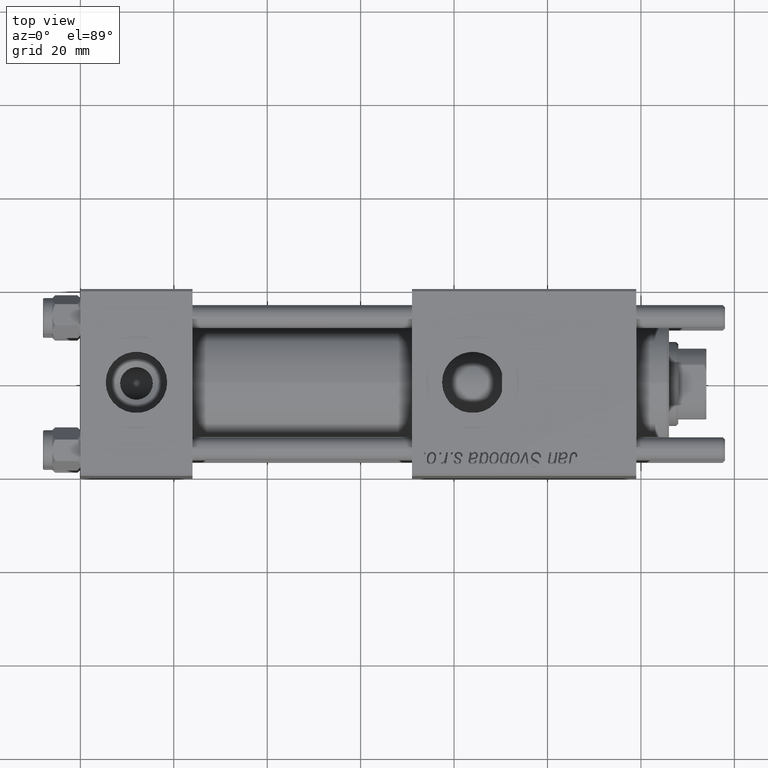
[diagram: clean part render]
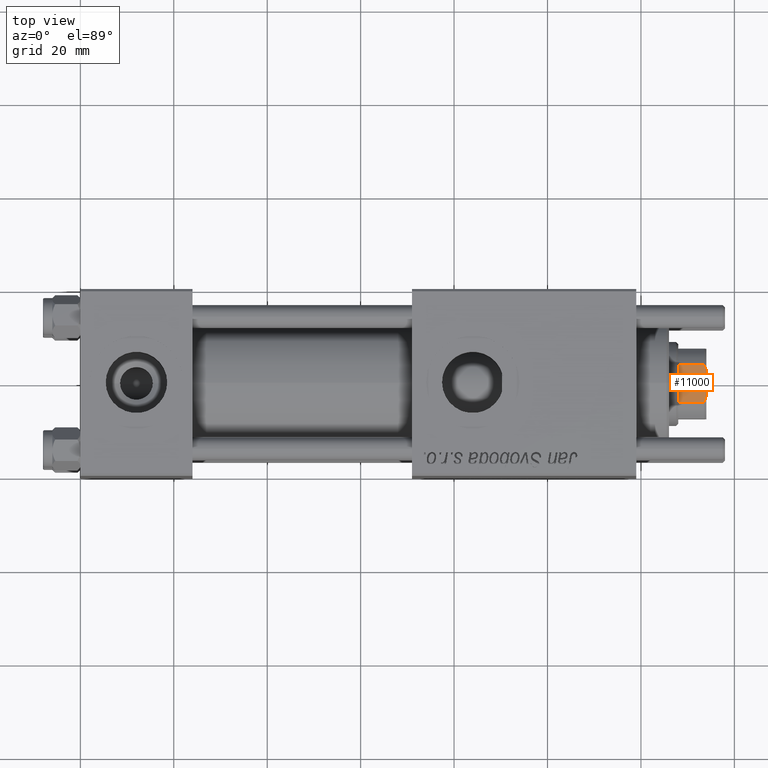
[diagram: same view with one face highlighted and labeled with its STEP entity id]
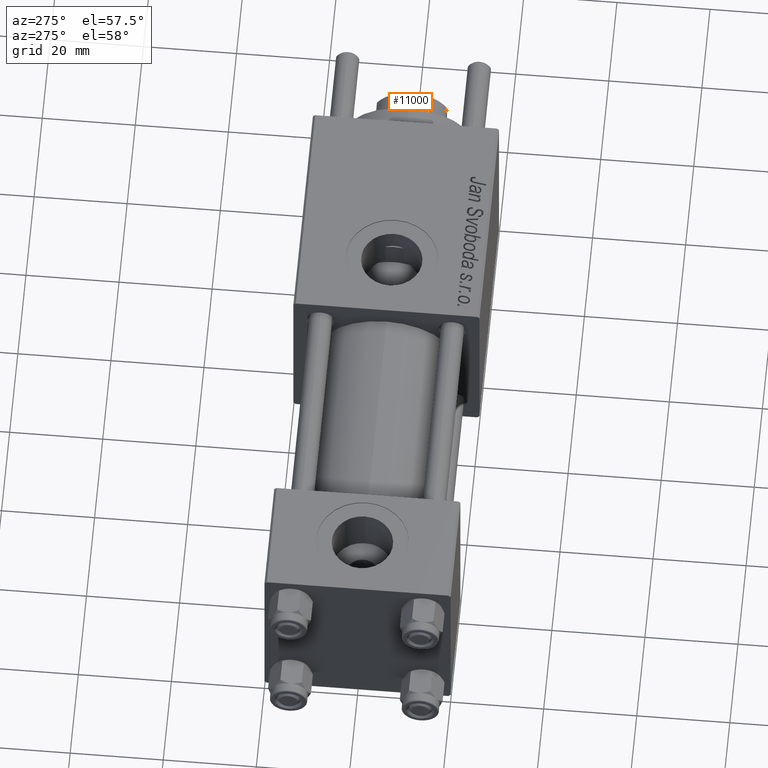
[diagram: same view with one face highlighted and labeled with its STEP entity id]
A machine part, top view. The second image highlights one B-rep face of the part: STEP entity #11000.
A second angle (auxiliary view) of the same face is appended — the face is thin or edge-on in the first view.
In plain terms, the highlighted planar face has unit normal (0, 0, -1).
Its self-contained STEP definition (entity closure, byte-faithful):
#4190 = CARTESIAN_POINT ( 'NONE',  ( -2.783882181414881973, -7.500000000000000000, 110.0000000000000000 ) ) ;
#4403 = ORIENTED_EDGE ( 'NONE', *, *, #35286, .F. ) ;
#4693 = CARTESIAN_POINT ( 'NONE',  ( -4.000000000000001776, -7.500000000000000000, 109.4999999999999147 ) ) ;
#6787 = VECTOR ( 'NONE', #15315, 1000.000000000000000 ) ;
#7795 = CARTESIAN_POINT ( 'NONE',  ( -3.198463757182627099, -7.500000000000000000, 109.8557317173096521 ) ) ;
#7909 = EDGE_LOOP ( 'NONE', ( #52935, #8975, #31699, #53224, #4403, #11834 ) ) ;
#7993 = LINE ( 'NONE', #32955, #34226 ) ;
#8975 = ORIENTED_EDGE ( 'NONE', *, *, #10151, .T. ) ;
#10151 = EDGE_CURVE ( 'NONE', #19230, #19481, #21722, .T. ) ;
#11000 = ADVANCED_FACE ( 'NONE', ( #52427 ), #24944, .F. ) ;
#11834 = ORIENTED_EDGE ( 'NONE', *, *, #33084, .T. ) ;
#12870 = DIRECTION ( 'NONE',  ( 0.000000000000000000, -0.000000000000000000, 1.000000000000000000 ) ) ;
#13139 = VECTOR ( 'NONE', #13170, 1000.000000000000000 ) ;
#13170 = DIRECTION ( 'NONE',  ( 1.000000000000000000, 0.000000000000000000, 0.000000000000000000 ) ) ;
#13762 = B_SPLINE_CURVE_WITH_KNOTS ( 'NONE', 3,
 ( #47077, #7795, #20421, #33612 ),
 .UNSPECIFIED., .F., .F.,
 ( 4, 4 ),
 ( 0.000000000000000000, 0.001314892599675087379 ),
 .UNSPECIFIED. ) ;
#15240 = VERTEX_POINT ( 'NONE', #4190 ) ;
#15315 = DIRECTION ( 'NONE',  ( -0.000000000000000000, -0.000000000000000000, 1.000000000000000000 ) ) ;
#15468 = EDGE_CURVE ( 'NONE', #15240, #19481, #51452, .T. ) ;
#19230 = VERTEX_POINT ( 'NONE', #54523 ) ;
#19481 = VERTEX_POINT ( 'NONE', #32388 ) ;
#20350 = VERTEX_POINT ( 'NONE', #25524 ) ;
#20421 = CARTESIAN_POINT ( 'NONE',  ( -3.602928590769680639, -7.500000000000000000, 109.6868571337553959 ) ) ;
#21722 = B_SPLINE_CURVE_WITH_KNOTS ( 'NONE', 3,
 ( #35257, #48439, #47868, #38990 ),
 .UNSPECIFIED., .F., .F.,
 ( 4, 4 ),
 ( 9.540979117872439019E-18, 0.001314892599675281017 ),
 .UNSPECIFIED. ) ;
#21918 = CARTESIAN_POINT ( 'NONE',  ( -7.499999999999998224, -7.500000000000000000, 110.0000000000000000 ) ) ;
#23938 = CARTESIAN_POINT ( 'NONE',  ( -4.000000000000001776, -7.500000000000000000, -0.001000000000001000089 ) ) ;
#24944 = PLANE ( 'NONE',  #41919 ) ;
#25509 = DIRECTION ( 'NONE',  ( 0.000000000000000000, 1.000000000000000000, 0.000000000000000000 ) ) ;
#25524 = CARTESIAN_POINT ( 'NONE',  ( 4.000000000000001776, -7.500000000000000000, 103.9999999999999716 ) ) ;
#30388 = LINE ( 'NONE', #35533, #13139 ) ;
#31699 = ORIENTED_EDGE ( 'NONE', *, *, #15468, .F. ) ;
#32388 = CARTESIAN_POINT ( 'NONE',  ( 2.783882181414686574, -7.500000000000000000, 110.0000000000000000 ) ) ;
#32955 = CARTESIAN_POINT ( 'NONE',  ( 4.000000000000001776, -7.500000000000000000, -0.001000000000001000089 ) ) ;
#33084 = EDGE_CURVE ( 'NONE', #46641, #20350, #30388, .T. ) ;
#33612 = CARTESIAN_POINT ( 'NONE',  ( -4.000000000000001776, -7.500000000000000000, 109.4999999999999147 ) ) ;
#34226 = VECTOR ( 'NONE', #55311, 1000.000000000000000 ) ;
#34255 = DIRECTION ( 'NONE',  ( 1.000000000000000000, 0.000000000000000000, 0.000000000000000000 ) ) ;
#35257 = CARTESIAN_POINT ( 'NONE',  ( 4.000000000000001776, -7.500000000000000000, 109.4999999999998579 ) ) ;
#35286 = EDGE_CURVE ( 'NONE', #46641, #35413, #54601, .T. ) ;
#35413 = VERTEX_POINT ( 'NONE', #4693 ) ;
#35533 = CARTESIAN_POINT ( 'NONE',  ( -7.499999999999998224, -7.500000000000000000, 104.0000000000000000 ) ) ;
#36190 = EDGE_CURVE ( 'NONE', #15240, #35413, #13762, .T. ) ;
#38990 = CARTESIAN_POINT ( 'NONE',  ( 2.783882181414686574, -7.500000000000000000, 110.0000000000000000 ) ) ;
#39608 = EDGE_CURVE ( 'NONE', #20350, #19230, #7993, .T. ) ;
#41716 = CARTESIAN_POINT ( 'NONE',  ( -4.000000000000001776, -7.500000000000000000, 103.9999999999999858 ) ) ;
#41919 = AXIS2_PLACEMENT_3D ( 'NONE', #52150, #25509, #12870 ) ;
#44767 = VECTOR ( 'NONE', #34255, 1000.000000000000000 ) ;
#46641 = VERTEX_POINT ( 'NONE', #41716 ) ;
#47077 = CARTESIAN_POINT ( 'NONE',  ( -2.783882181414881973, -7.500000000000000000, 110.0000000000000000 ) ) ;
#47868 = CARTESIAN_POINT ( 'NONE',  ( 3.198463757182489431, -7.500000000000000000, 109.8557317173096379 ) ) ;
#48439 = CARTESIAN_POINT ( 'NONE',  ( 3.602928590769623352, -7.500000000000000000, 109.6868571337553675 ) ) ;
#51452 = LINE ( 'NONE', #21918, #44767 ) ;
#52150 = CARTESIAN_POINT ( 'NONE',  ( -7.499999999999998224, -7.500000000000000000, 110.0000000000000000 ) ) ;
#52427 = FACE_OUTER_BOUND ( 'NONE', #7909, .T. ) ;
#52935 = ORIENTED_EDGE ( 'NONE', *, *, #39608, .T. ) ;
#53224 = ORIENTED_EDGE ( 'NONE', *, *, #36190, .T. ) ;
#54523 = CARTESIAN_POINT ( 'NONE',  ( 4.000000000000001776, -7.500000000000000000, 109.4999999999998579 ) ) ;
#54601 = LINE ( 'NONE', #23938, #6787 ) ;
#55311 = DIRECTION ( 'NONE',  ( -0.000000000000000000, -0.000000000000000000, 1.000000000000000000 ) ) ;